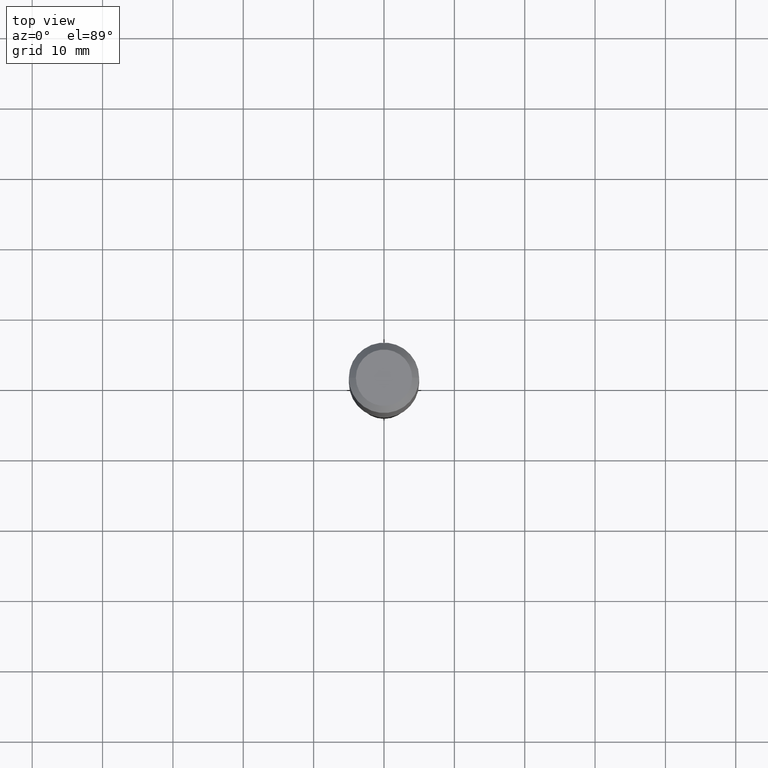
[diagram: clean part render]
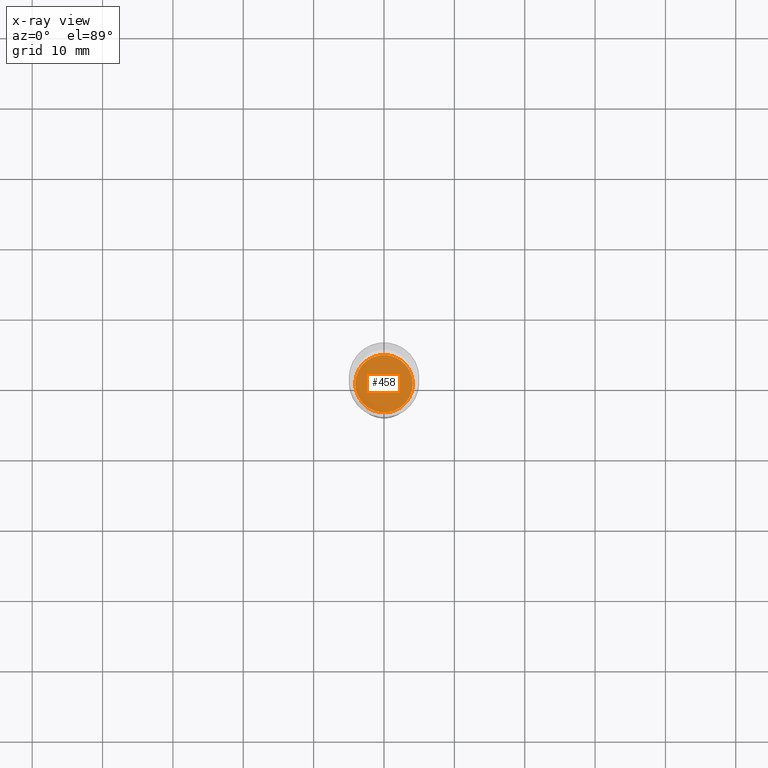
[diagram: x-ray — body ghosted, one internal face saturated and labeled with its STEP entity id]
A machine part, top view, then the same camera in x-ray: the body is ghosted and one INTERNAL B-rep face — a face not visible from any outside direction — is saturated and labeled: STEP entity #458.
In plain terms, the highlighted planar face has unit normal (-0, 0, 1).
Its self-contained STEP definition (entity closure, byte-faithful):
#9 = CARTESIAN_POINT ( 'NONE',  ( 4.832980001663685166E-29, -6.900214569955707952E-15, -1.976299999999999946 ) ) ;
#20 = VERTEX_POINT ( 'NONE', #33 ) ;
#33 = CARTESIAN_POINT ( 'NONE',  ( -0.1608999999999999875, -5.754302080943595246E-15, -1.976299999999999946 ) ) ;
#36 = DIRECTION ( 'NONE',  ( 1.000000000000000000, -6.982962677686268288E-15, 0.000000000000000000 ) ) ;
#42 = AXIS2_PLACEMENT_3D ( 'NONE', #69, #290, #36 ) ;
#50 = PLANE ( 'NONE',  #118 ) ;
#53 = FACE_OUTER_BOUND ( 'NONE', #373, .T. ) ;
#69 = CARTESIAN_POINT ( 'NONE',  ( 4.832980001663685166E-29, -6.900214569955707952E-15, -1.976299999999999946 ) ) ;
#73 = DIRECTION ( 'NONE',  ( 1.000000000000000000, -6.982962677686268288E-15, 0.000000000000000000 ) ) ;
#78 = EDGE_CURVE ( 'NONE', #280, #20, #310, .T. ) ;
#111 = ORIENTED_EDGE ( 'NONE', *, *, #250, .F. ) ;
#118 = AXIS2_PLACEMENT_3D ( 'NONE', #9, #159, #230 ) ;
#159 = DIRECTION ( 'NONE',  ( -2.438088387897960049E-29, 3.491481338843145188E-15, 1.000000000000000000 ) ) ;
#166 = AXIS2_PLACEMENT_3D ( 'NONE', #258, #265, #73 ) ;
#222 = ORIENTED_EDGE ( 'NONE', *, *, #78, .F. ) ;
#230 = DIRECTION ( 'NONE',  ( 1.000000000000000000, -6.982962677686265922E-15, 4.876176775795935793E-29 ) ) ;
#250 = EDGE_CURVE ( 'NONE', #20, #280, #404, .T. ) ;
#258 = CARTESIAN_POINT ( 'NONE',  ( 4.832980001663685166E-29, -6.900214569955707952E-15, -1.976299999999999946 ) ) ;
#265 = DIRECTION ( 'NONE',  ( -2.445468806185136597E-29, 3.491481338843145583E-15, 1.000000000000000000 ) ) ;
#280 = VERTEX_POINT ( 'NONE', #489 ) ;
#290 = DIRECTION ( 'NONE',  ( -2.445468806185136597E-29, 3.491481338843145583E-15, 1.000000000000000000 ) ) ;
#310 = CIRCLE ( 'NONE', #42, 0.1608999999999999875 ) ;
#373 = EDGE_LOOP ( 'NONE', ( #222, #111 ) ) ;
#404 = CIRCLE ( 'NONE', #166, 0.1608999999999999875 ) ;
#458 = ADVANCED_FACE ( 'NONE', ( #53 ), #50, .F. ) ;
#489 = CARTESIAN_POINT ( 'NONE',  ( 0.1608999999999999875, -8.023773264795427881E-15, -1.976299999999999946 ) ) ;